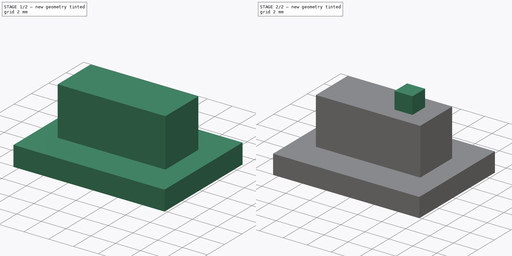
[diagram: build sequence overview — one tinted view per stage of 2, left to right]
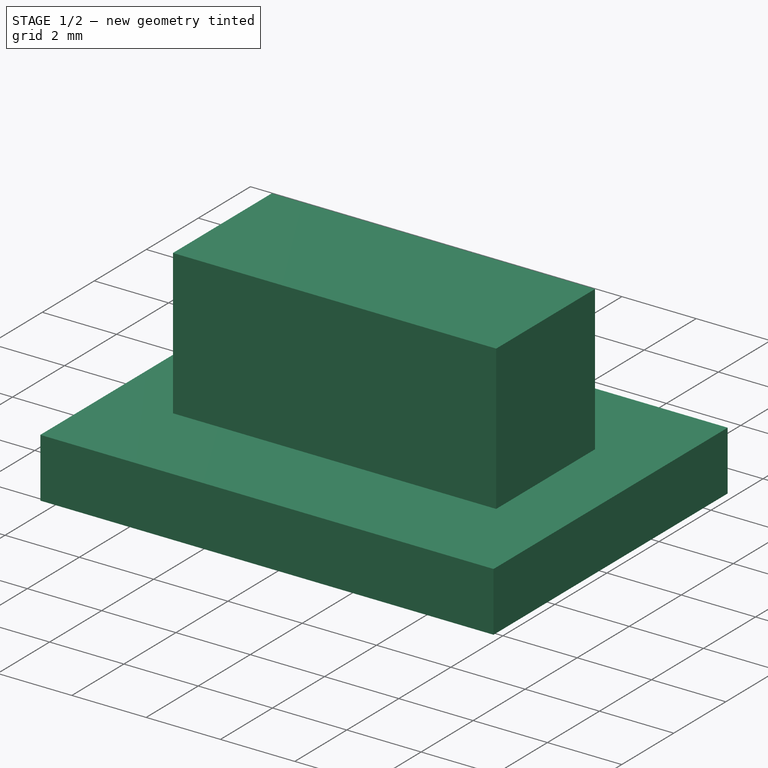
[diagram: stage 1 of 2 — iso view after this stage's code; geometry added in this stage tinted green]
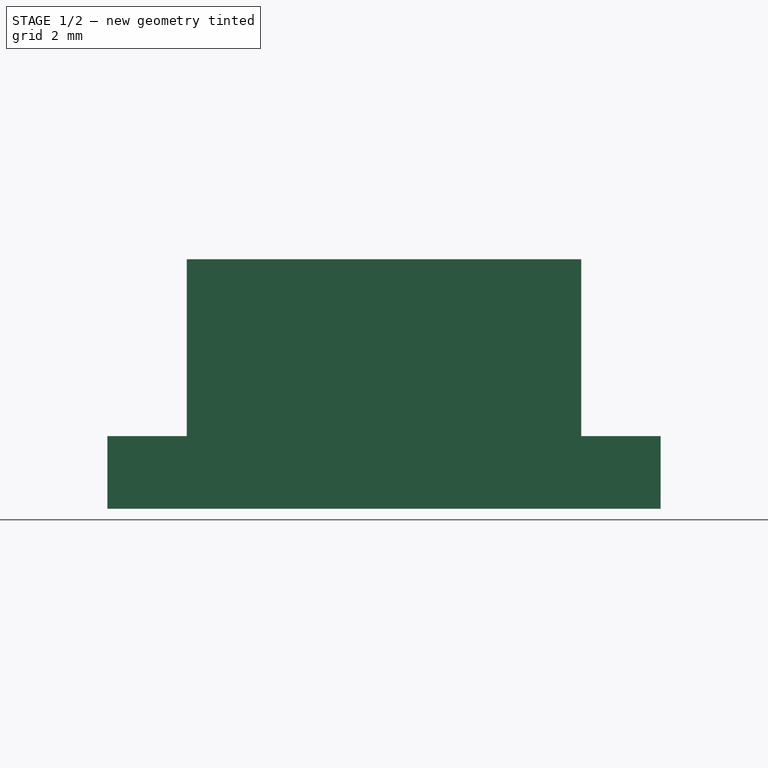
[diagram: stage 1 of 2 — front view after this stage's code; geometry added in this stage tinted green]
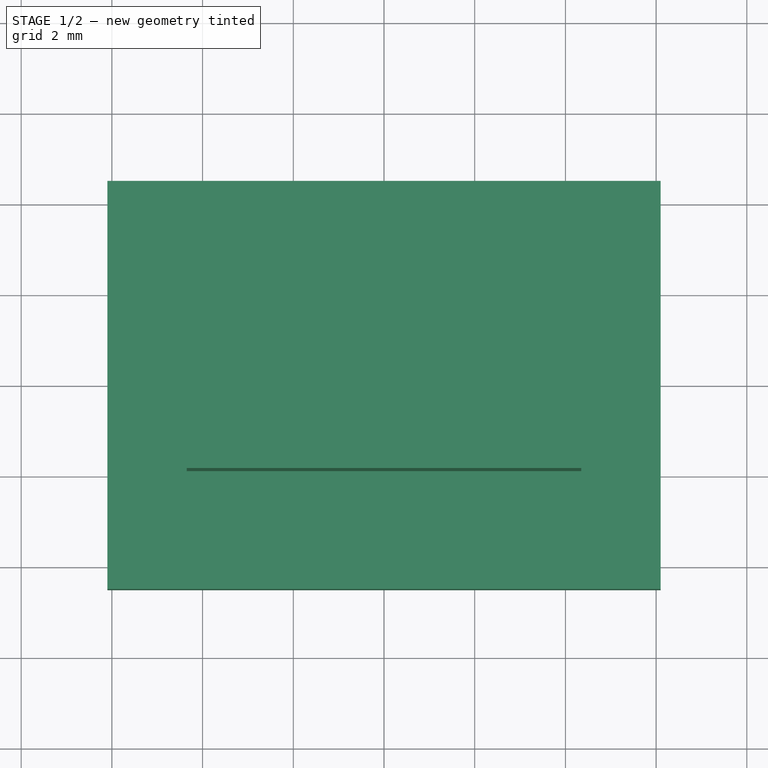
[diagram: stage 1 of 2 — top view after this stage's code; geometry added in this stage tinted green]
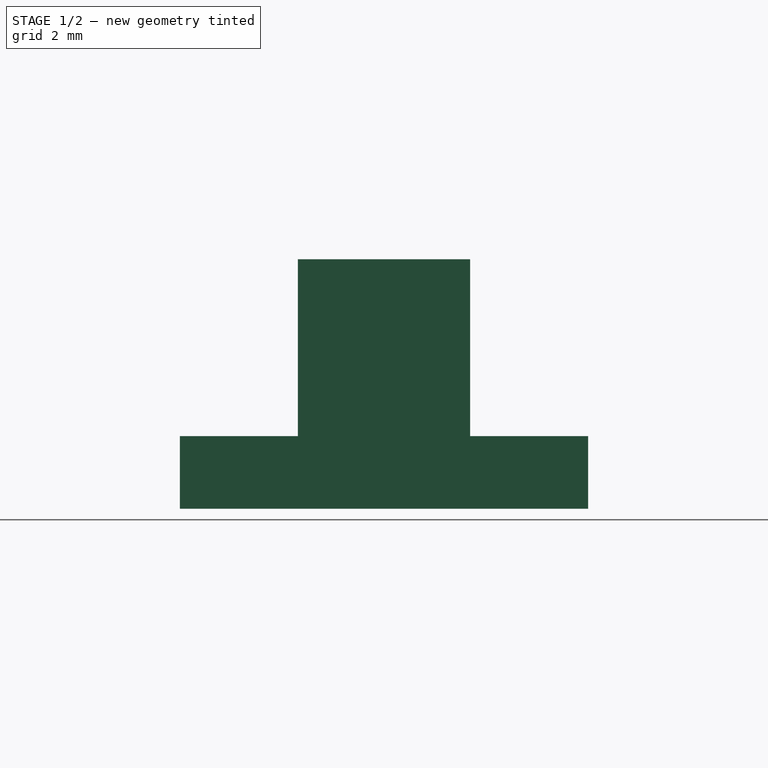
[diagram: stage 1 of 2 — right view after this stage's code; geometry added in this stage tinted green]
FCSTD DOCUMENT  (FreeCAD 0.16R5206 (Git))
Label: kill_switch
License: CreativeCommons Attribution-ShareAlike
LicenseURL: http://creativecommons.org/licenses/by-sa/4.0/
objects: Sketcher::SketchObject×3, PartDesign::Pad×3
note: 9 computed .brp shape members not serialized (recipe doc carries the construction recipe); baked Part::Feature solids carry a one-line shape summary decoded from their .brp

FEATURE [Sketcher::SketchObject] Sketch
  sketch-geometry (4):
    g0: LineSegment StartX=-6.1 StartY=4.5 StartZ=0 EndX=6.1 EndY=4.5 EndZ=0
    g1: LineSegment StartX=6.1 StartY=4.5 StartZ=0 EndX=6.1 EndY=-4.5 EndZ=0
    g2: LineSegment StartX=6.1 StartY=-4.5 StartZ=0 EndX=-6.1 EndY=-4.5 EndZ=0
    g3: LineSegment StartX=-6.1 StartY=-4.5 StartZ=0 EndX=-6.1 EndY=4.5 EndZ=0
  constraints (11):
    c: Coincident(g0,g1)
    c: Coincident(g1,g2)
    c: Coincident(g2,g3)
    c: Coincident(g3,g0)
    c: Horizontal(g0)
    c: Horizontal(g2)
    c: Vertical(g1)
    c: Vertical(g3)
    c: Symmetric(g1,g0,g-1)
    c: DistanceX(g0) = 12.2
    c: DistanceY(g1) = -9
FEATURE [PartDesign::Pad] Pad
  Length = 1.6
  Length2 = 100
  Sketch = -> Sketch
  Type = 0
FEATURE [Sketcher::SketchObject] Sketch001
  Placement = pos=(0,0,1.6) rot=(0,0,1;0rad)
  Support = -> Pad [Face6]
  sketch-geometry (4):
    g0: LineSegment StartX=-4.35 StartY=1.9 StartZ=0 EndX=4.35 EndY=1.9 EndZ=0
    g1: LineSegment StartX=4.35 StartY=1.9 StartZ=0 EndX=4.35 EndY=-1.9 EndZ=0
    g2: LineSegment StartX=4.35 StartY=-1.9 StartZ=0 EndX=-4.35 EndY=-1.9 EndZ=0
    g3: LineSegment StartX=-4.35 StartY=-1.9 StartZ=0 EndX=-4.35 EndY=1.9 EndZ=0
  constraints (11):
    c: Coincident(g0,g1)
    c: Coincident(g1,g2)
    c: Coincident(g2,g3)
    c: Coincident(g3,g0)
    c: Horizontal(g0)
    c: Horizontal(g2)
    c: Vertical(g1)
    c: Vertical(g3)
    c: Symmetric(g1,g0,g-1)
    c: DistanceX(g0) = 8.7
    c: DistanceY(g1) = -3.8
FEATURE [PartDesign::Pad] Pad001
  Length = 3.9
  Length2 = 100
  Sketch = -> Sketch001
  Type = 0
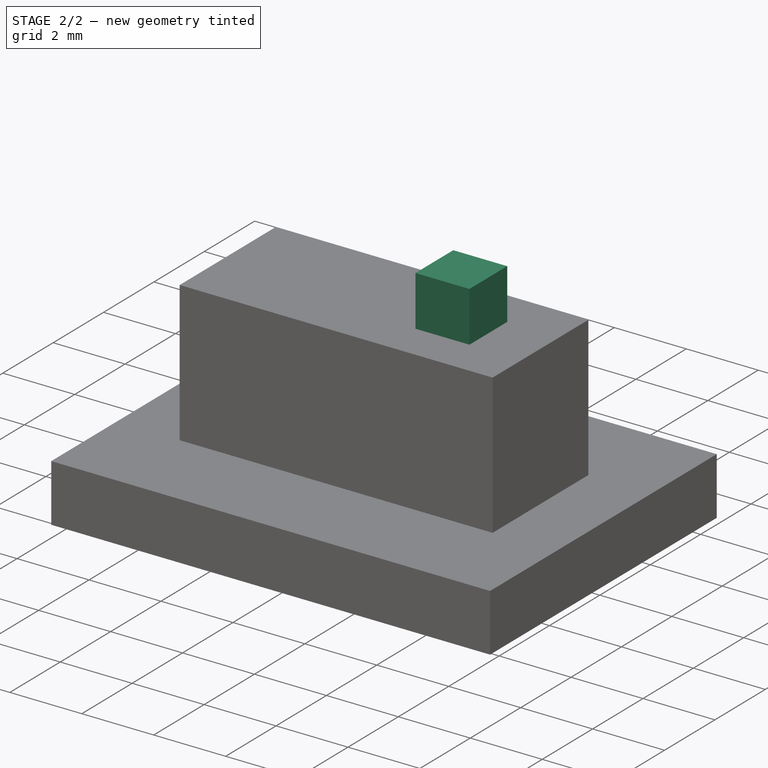
[diagram: stage 2 of 2 — iso view after this stage's code; geometry added in this stage tinted green]
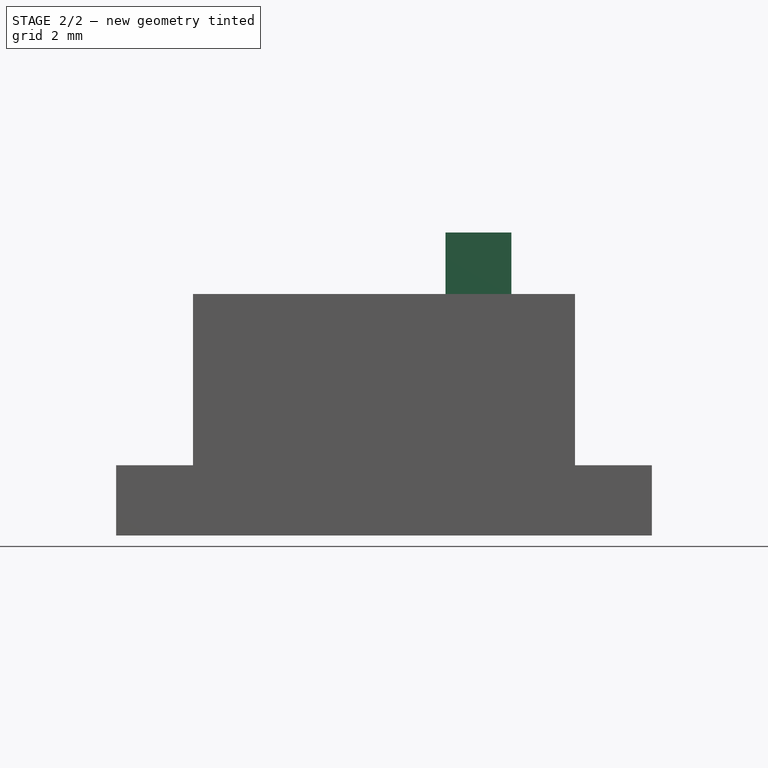
[diagram: stage 2 of 2 — front view after this stage's code; geometry added in this stage tinted green]
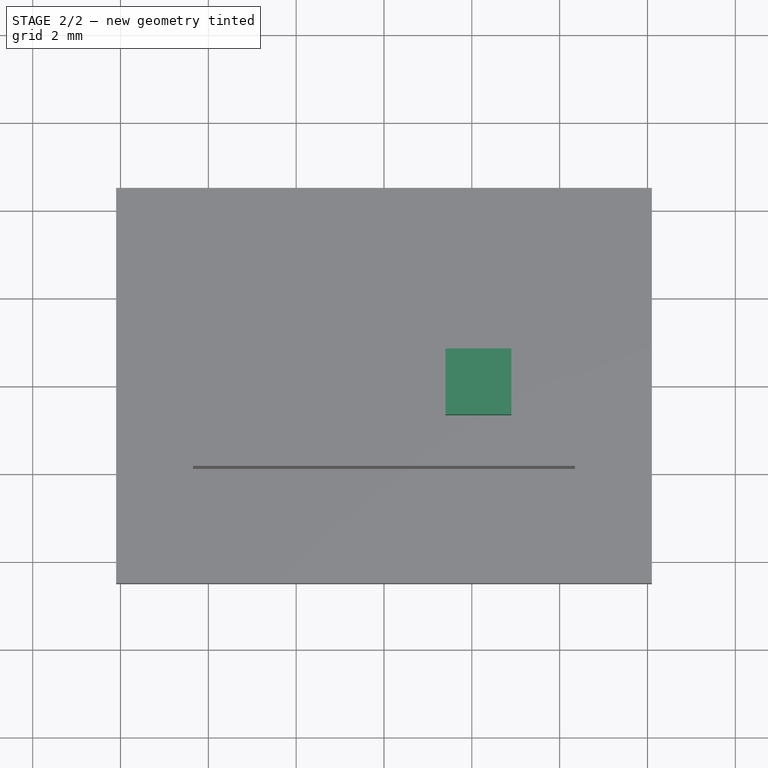
[diagram: stage 2 of 2 — top view after this stage's code; geometry added in this stage tinted green]
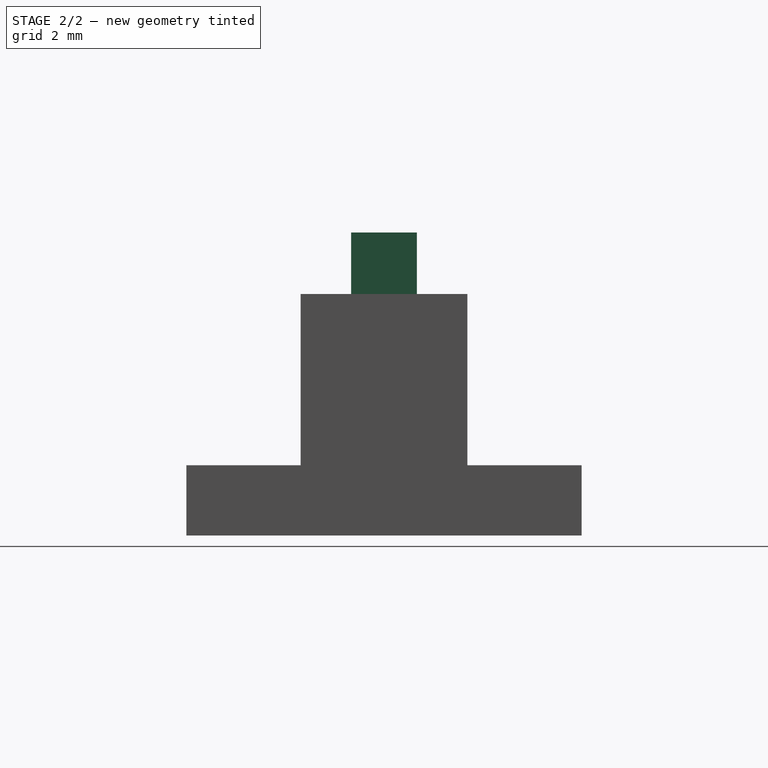
[diagram: stage 2 of 2 — right view after this stage's code; geometry added in this stage tinted green]
FEATURE [Sketcher::SketchObject] Sketch002
  Placement = pos=(0,0,5.5) rot=(0,0,1;0rad)
  Support = -> Pad001 [Face11]
  sketch-geometry (4):
    g0: LineSegment StartX=1.4 StartY=0.75 StartZ=0 EndX=2.9 EndY=0.75 EndZ=0
    g1: LineSegment StartX=2.9 StartY=0.75 StartZ=0 EndX=2.9 EndY=-0.75 EndZ=0
    g2: LineSegment StartX=2.9 StartY=-0.75 StartZ=0 EndX=1.4 EndY=-0.75 EndZ=0
    g3: LineSegment StartX=1.4 StartY=-0.75 StartZ=0 EndX=1.4 EndY=0.75 EndZ=0
  constraints (12):
    c: Coincident(g0,g1)
    c: Coincident(g1,g2)
    c: Coincident(g2,g3)
    c: Coincident(g3,g0)
    c: Horizontal(g0)
    c: Horizontal(g2)
    c: Vertical(g1)
    c: Vertical(g3)
    c: Symmetric(g1,g0,g-1)
    c: Equal(g0,g1)
    c: DistanceX(g0) = 1.5
    c: DistanceX(g0) = 1.4
FEATURE [PartDesign::Pad] Pad002  label="kill_switch"
  Length = 1.4
  Length2 = 100
  Sketch = -> Sketch002
  Type = 0
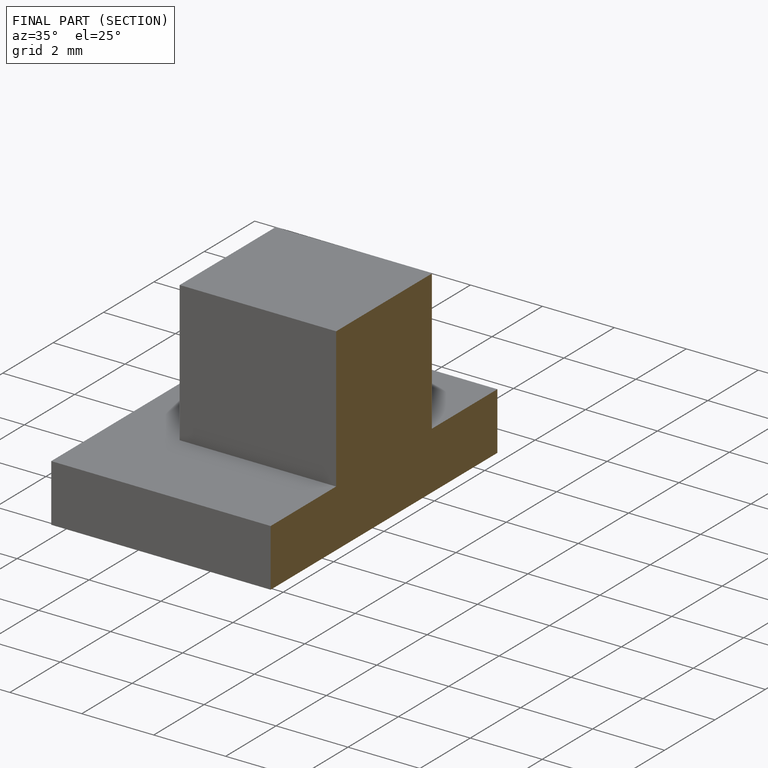
[diagram: finished part — half-section view (interior)]
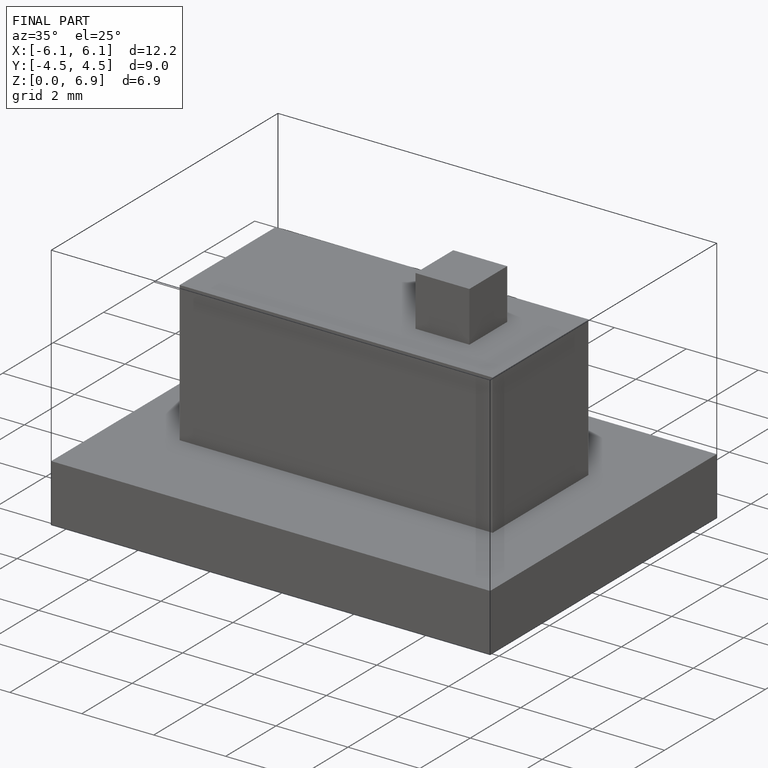
[diagram: finished part — iso view with bounding-box wireframe]
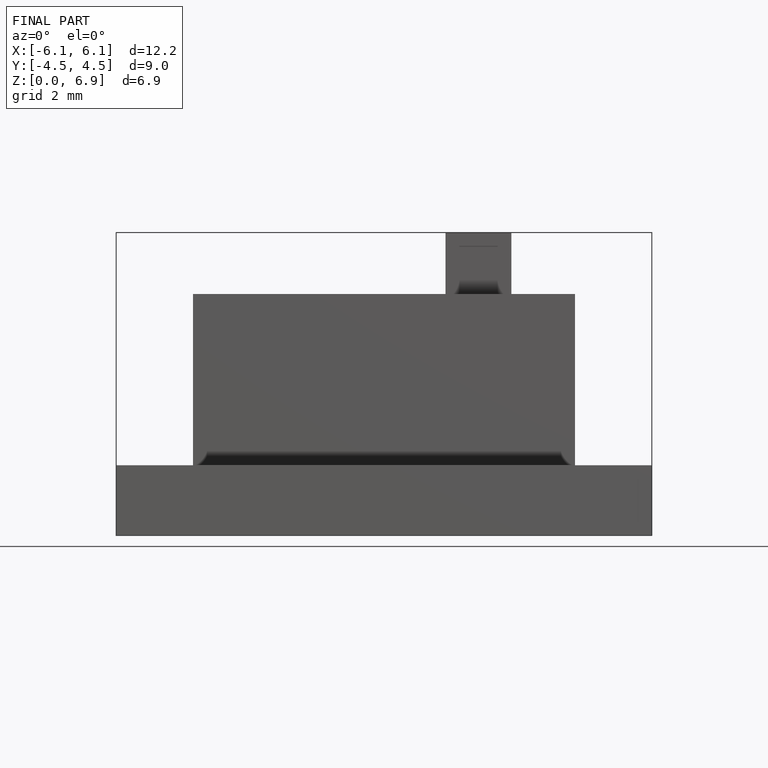
[diagram: finished part — front view with bounding-box wireframe]
